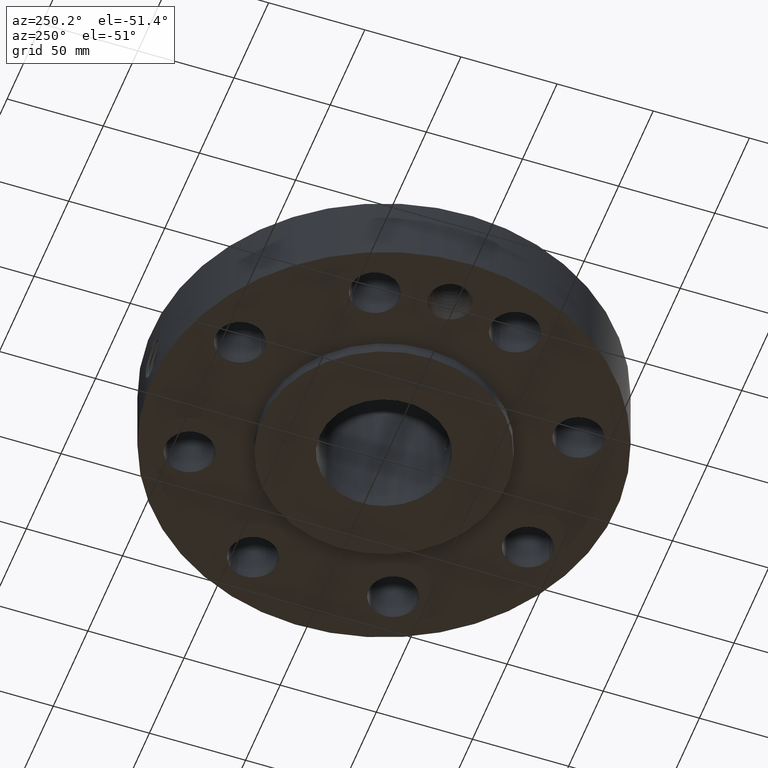
[diagram: clean part render]
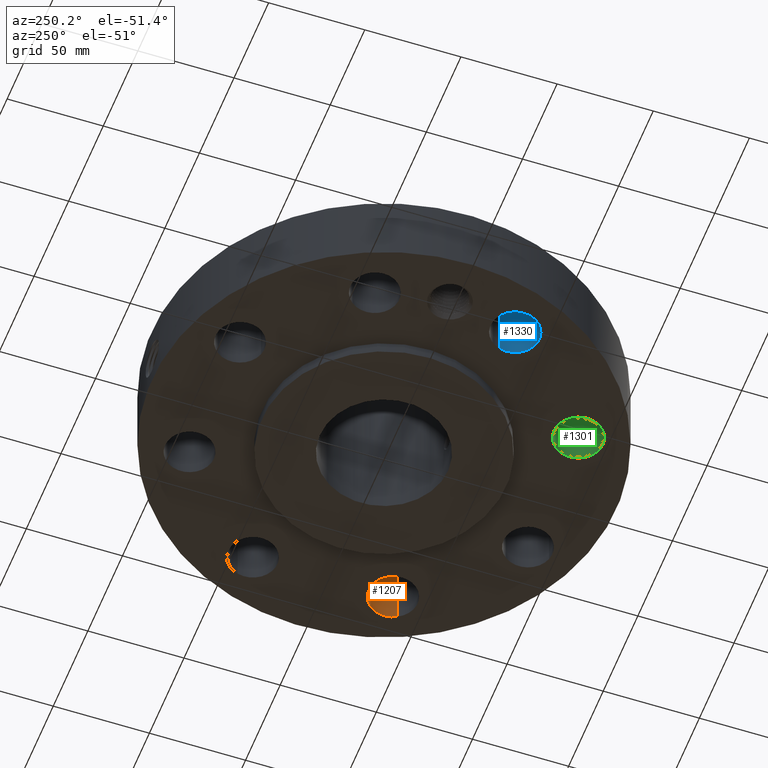
[diagram: same view with three faces highlighted in distinct colors, each labeled with its STEP entity id]
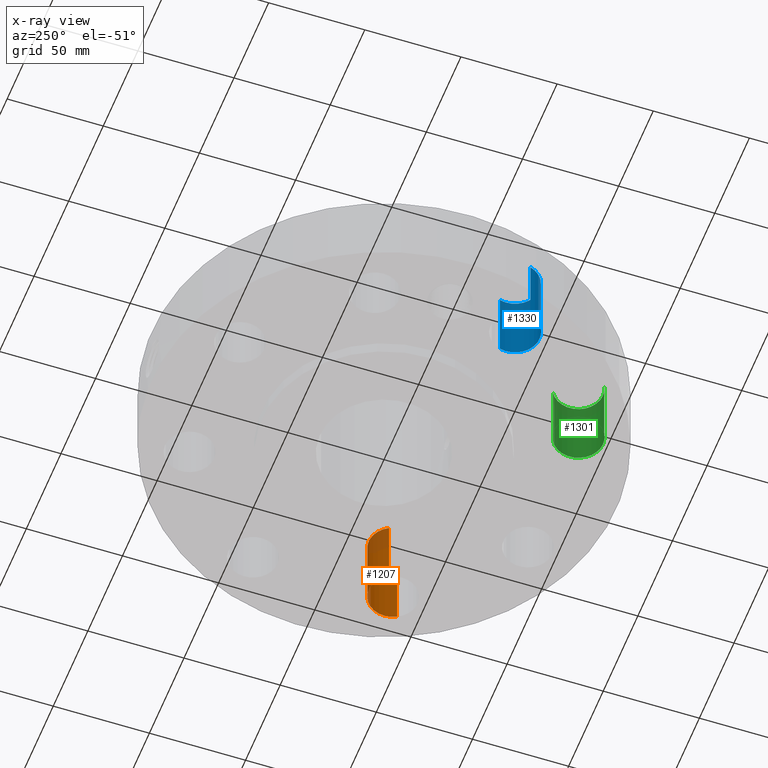
[diagram: x-ray of the same camera — body ghosted, the three highlighted faces saturated]
A machine part, auxiliary view with three faces highlighted in distinct colors.
The next image is the same camera in x-ray (body ghosted, the three faces saturated) — at least one of them is partly hidden behind the body in this view.
Their STEP definitions:

[orange] entity #1207 — the highlighted cylindrical surface (edge-blend (fillet) strip) has radius 12.7 mm, axis along (0, -0, -1).
#221=AXIS2_PLACEMENT_3D('Circle Axis2P3D',#219,#220,$) ;
#517=AXIS2_PLACEMENT_3D('Circle Axis2P3D',#515,#516,$) ;
#1182=AXIS2_PLACEMENT_3D('Cylinder Axis2P3D',#1179,#1180,#1181) ;
#214=CARTESIAN_POINT('Vertex',(3.90333952788,-1.67477564068,0.250000000001)) ;
#216=CARTESIAN_POINT('Vertex',(3.02575696598,-1.19535010207,0.250000000001)) ;
#219=CARTESIAN_POINT('Axis2P3D Location',(3.46454824693,-1.43506287137,0.250000000001)) ;
#515=CARTESIAN_POINT('Axis2P3D Location',(3.46454824693,-1.43506287137,1.75000000001)) ;
#519=CARTESIAN_POINT('Vertex',(3.02575696598,-1.19535010207,1.75000000001)) ;
#521=CARTESIAN_POINT('Vertex',(3.90333952788,-1.67477564068,1.75000000001)) ;
#1179=CARTESIAN_POINT('Axis2P3D Location',(3.46454824693,-1.43506287137,1.74606299213)) ;
#1184=CARTESIAN_POINT('Line Origine',(3.90333952788,-1.67477564068,1.)) ;
#1189=CARTESIAN_POINT('Line Origine',(3.02575696598,-1.19535010207,1.)) ;
#220=DIRECTION('Axis2P3D Direction',(0.,0.,-0.0393700787402)) ;
#516=DIRECTION('Axis2P3D Direction',(0.,0.,-0.0393700787402)) ;
#1180=DIRECTION('Axis2P3D Direction',(0.,-0.,-0.0393700787402)) ;
#1181=DIRECTION('Axis2P3D XDirection',(-0.0345504945626,0.0188750212049,0.)) ;
#1185=DIRECTION('Vector Direction',(0.,0.,-0.0393700787402)) ;
#1190=DIRECTION('Vector Direction',(0.,0.,-0.0393700787402)) ;
#1186=VECTOR('Line Direction',#1185,0.0393700787402) ;
#1191=VECTOR('Line Direction',#1190,0.0393700787402) ;
#1202=ORIENTED_EDGE('',*,*,#1193,.F.) ;
#1203=ORIENTED_EDGE('',*,*,#223,.T.) ;
#1204=ORIENTED_EDGE('',*,*,#1188,.T.) ;
#1205=ORIENTED_EDGE('',*,*,#523,.F.) ;
#1207=ADVANCED_FACE('PartBody',(#1206),#1183,.F.) ;
#222=CIRCLE('generated circle',#221,0.500000000002) ;
#518=CIRCLE('generated circle',#517,0.500000000002) ;
#1183=CYLINDRICAL_SURFACE('generated cylinder',#1182,0.500000000002) ;
#223=EDGE_CURVE('',#217,#215,#222,.T.) ;
#523=EDGE_CURVE('',#520,#522,#518,.T.) ;
#1188=EDGE_CURVE('',#215,#522,#1187,.F.) ;
#1193=EDGE_CURVE('',#217,#520,#1192,.F.) ;
#1201=EDGE_LOOP('',(#1202,#1203,#1204,#1205)) ;
#1206=FACE_OUTER_BOUND('',#1201,.T.) ;
#1187=LINE('Line',#1184,#1186) ;
#1192=LINE('Line',#1189,#1191) ;
#215=VERTEX_POINT('',#214) ;
#217=VERTEX_POINT('',#216) ;
#520=VERTEX_POINT('',#519) ;
#522=VERTEX_POINT('',#521) ;

[blue] entity #1330 — the highlighted cylindrical surface (edge-blend (fillet) strip) has radius 12.7 mm, axis along (-0, 0, -1).
#284=AXIS2_PLACEMENT_3D('Circle Axis2P3D',#282,#283,$) ;
#598=AXIS2_PLACEMENT_3D('Circle Axis2P3D',#596,#597,$) ;
#1312=AXIS2_PLACEMENT_3D('Cylinder Axis2P3D',#1309,#1310,#1311) ;
#282=CARTESIAN_POINT('Axis2P3D Location',(-3.46454824693,-1.43506287137,0.250000000001)) ;
#286=CARTESIAN_POINT('Vertex',(-2.98477343194,-1.2942931058,0.250000000001)) ;
#288=CARTESIAN_POINT('Vertex',(-3.94432306193,-1.57583263695,0.250000000001)) ;
#591=CARTESIAN_POINT('Vertex',(-3.94432306193,-1.57583263695,1.75000000001)) ;
#593=CARTESIAN_POINT('Vertex',(-2.98477343194,-1.2942931058,1.75000000001)) ;
#596=CARTESIAN_POINT('Axis2P3D Location',(-3.46454824693,-1.43506287137,1.75000000001)) ;
#1309=CARTESIAN_POINT('Axis2P3D Location',(-3.46454824693,-1.43506287137,1.74606299213)) ;
#1314=CARTESIAN_POINT('Line Origine',(-2.98477343194,-1.2942931058,1.)) ;
#1319=CARTESIAN_POINT('Line Origine',(-3.94432306193,-1.57583263695,1.)) ;
#283=DIRECTION('Axis2P3D Direction',(0.,0.,-0.0393700787402)) ;
#597=DIRECTION('Axis2P3D Direction',(0.,0.,-0.0393700787402)) ;
#1310=DIRECTION('Axis2P3D Direction',(-0.,0.,-0.0393700787402)) ;
#1311=DIRECTION('Axis2P3D XDirection',(-0.0377775444876,-0.0110842335096,0.)) ;
#1315=DIRECTION('Vector Direction',(0.,0.,-0.0393700787402)) ;
#1320=DIRECTION('Vector Direction',(0.,0.,-0.0393700787402)) ;
#1316=VECTOR('Line Direction',#1315,0.0393700787402) ;
#1321=VECTOR('Line Direction',#1320,0.0393700787402) ;
#1325=ORIENTED_EDGE('',*,*,#1318,.F.) ;
#1326=ORIENTED_EDGE('',*,*,#290,.T.) ;
#1327=ORIENTED_EDGE('',*,*,#1323,.T.) ;
#1328=ORIENTED_EDGE('',*,*,#600,.F.) ;
#1330=ADVANCED_FACE('PartBody',(#1329),#1313,.F.) ;
#285=CIRCLE('generated circle',#284,0.500000000002) ;
#599=CIRCLE('generated circle',#598,0.500000000002) ;
#1313=CYLINDRICAL_SURFACE('generated cylinder',#1312,0.500000000002) ;
#290=EDGE_CURVE('',#287,#289,#285,.T.) ;
#600=EDGE_CURVE('',#594,#592,#599,.T.) ;
#1318=EDGE_CURVE('',#287,#594,#1317,.F.) ;
#1323=EDGE_CURVE('',#289,#592,#1322,.F.) ;
#1324=EDGE_LOOP('',(#1325,#1326,#1327,#1328)) ;
#1329=FACE_OUTER_BOUND('',#1324,.T.) ;
#1317=LINE('Line',#1314,#1316) ;
#1322=LINE('Line',#1319,#1321) ;
#287=VERTEX_POINT('',#286) ;
#289=VERTEX_POINT('',#288) ;
#592=VERTEX_POINT('',#591) ;
#594=VERTEX_POINT('',#593) ;

[green] entity #1301 — the highlighted cylindrical surface (edge-blend (fillet) strip) has radius 12.7 mm, axis along (0, -0, -1).
#266=AXIS2_PLACEMENT_3D('Circle Axis2P3D',#264,#265,$) ;
#580=AXIS2_PLACEMENT_3D('Circle Axis2P3D',#578,#579,$) ;
#1283=AXIS2_PLACEMENT_3D('Cylinder Axis2P3D',#1280,#1281,#1282) ;
#264=CARTESIAN_POINT('Axis2P3D Location',(-1.43506287137,-3.46454824693,0.250000000001)) ;
#268=CARTESIAN_POINT('Vertex',(-1.19535010207,-3.02575696598,0.250000000001)) ;
#270=CARTESIAN_POINT('Vertex',(-1.67477564068,-3.90333952788,0.250000000001)) ;
#573=CARTESIAN_POINT('Vertex',(-1.67477564068,-3.90333952788,1.75000000001)) ;
#575=CARTESIAN_POINT('Vertex',(-1.19535010207,-3.02575696598,1.75000000001)) ;
#578=CARTESIAN_POINT('Axis2P3D Location',(-1.43506287137,-3.46454824693,1.75000000001)) ;
#1280=CARTESIAN_POINT('Axis2P3D Location',(-1.43506287137,-3.46454824693,1.74606299213)) ;
#1285=CARTESIAN_POINT('Line Origine',(-1.19535010207,-3.02575696598,1.)) ;
#1290=CARTESIAN_POINT('Line Origine',(-1.67477564068,-3.90333952788,1.)) ;
#265=DIRECTION('Axis2P3D Direction',(0.,0.,-0.0393700787402)) ;
#579=DIRECTION('Axis2P3D Direction',(0.,0.,-0.0393700787402)) ;
#1281=DIRECTION('Axis2P3D Direction',(0.,-0.,-0.0393700787402)) ;
#1282=DIRECTION('Axis2P3D XDirection',(-0.0188750212049,-0.0345504945626,0.)) ;
#1286=DIRECTION('Vector Direction',(0.,0.,-0.0393700787402)) ;
#1291=DIRECTION('Vector Direction',(0.,0.,-0.0393700787402)) ;
#1287=VECTOR('Line Direction',#1286,0.0393700787402) ;
#1292=VECTOR('Line Direction',#1291,0.0393700787402) ;
#1296=ORIENTED_EDGE('',*,*,#1289,.F.) ;
#1297=ORIENTED_EDGE('',*,*,#272,.T.) ;
#1298=ORIENTED_EDGE('',*,*,#1294,.T.) ;
#1299=ORIENTED_EDGE('',*,*,#582,.F.) ;
#1301=ADVANCED_FACE('PartBody',(#1300),#1284,.F.) ;
#267=CIRCLE('generated circle',#266,0.500000000002) ;
#581=CIRCLE('generated circle',#580,0.500000000002) ;
#1284=CYLINDRICAL_SURFACE('generated cylinder',#1283,0.500000000002) ;
#272=EDGE_CURVE('',#269,#271,#267,.T.) ;
#582=EDGE_CURVE('',#576,#574,#581,.T.) ;
#1289=EDGE_CURVE('',#269,#576,#1288,.F.) ;
#1294=EDGE_CURVE('',#271,#574,#1293,.F.) ;
#1295=EDGE_LOOP('',(#1296,#1297,#1298,#1299)) ;
#1300=FACE_OUTER_BOUND('',#1295,.T.) ;
#1288=LINE('Line',#1285,#1287) ;
#1293=LINE('Line',#1290,#1292) ;
#269=VERTEX_POINT('',#268) ;
#271=VERTEX_POINT('',#270) ;
#574=VERTEX_POINT('',#573) ;
#576=VERTEX_POINT('',#575) ;